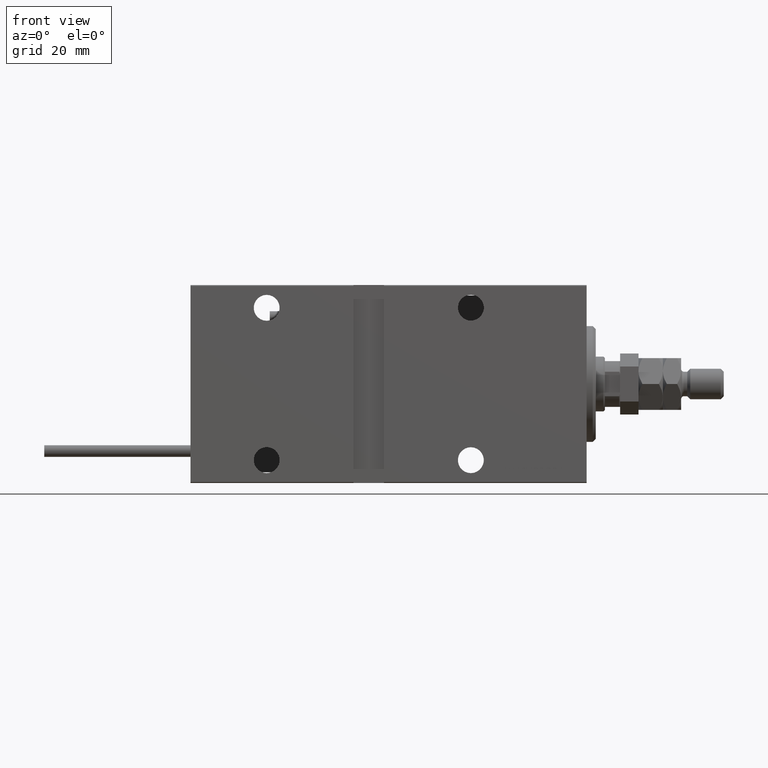
[diagram: clean part render]
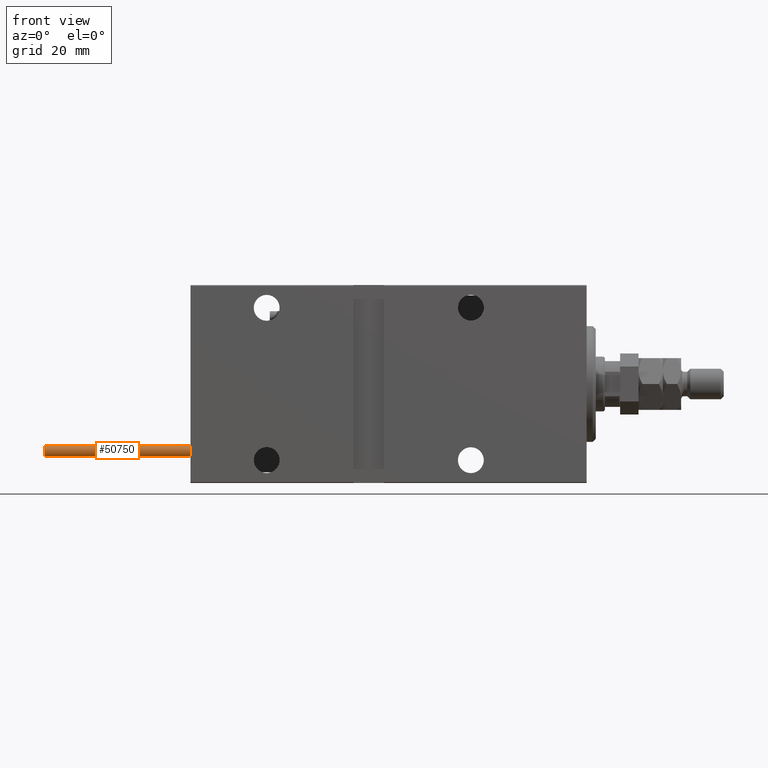
[diagram: same view with one face highlighted and labeled with its STEP entity id]
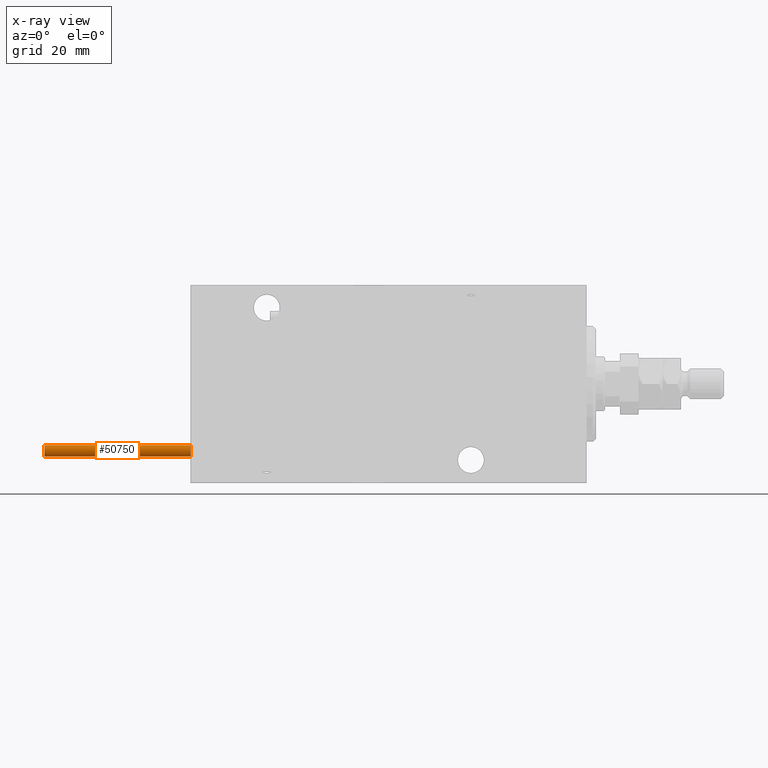
[diagram: x-ray of the same camera — body ghosted, the highlighted face saturated]
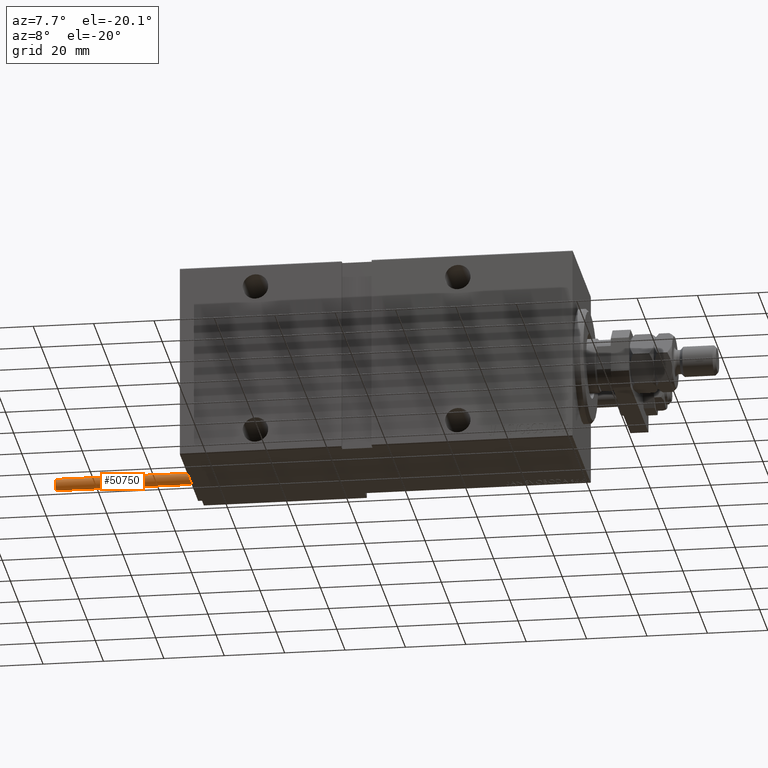
[diagram: same view with one face highlighted and labeled with its STEP entity id]
A machine part, front view. The second image highlights one B-rep face of the part: STEP entity #50750.
The next image is the same camera in x-ray: the body ghosted, the highlighted face saturated — about 0% of this face is hidden behind the body in this view.
A second angle (auxiliary view) of the same face is appended — the face is thin or edge-on in the first view.
In plain terms, the highlighted cylindrical surface (edge-blend (fillet) strip) has radius 1.9 mm, axis along (1, -0, 0).
Its self-contained STEP definition (entity closure, byte-faithful):
#620 = DIRECTION ( 'NONE',  ( -0.000000000000000000, -0.000000000000000000, -1.000000000000000000 ) ) ;
#1344 = CARTESIAN_POINT ( 'NONE',  ( 0.000000000000000000, 0.000000000000000000, 48.00000000000000000 ) ) ;
#2046 = AXIS2_PLACEMENT_3D ( 'NONE', #1344, #17070, #41388 ) ;
#2916 = CARTESIAN_POINT ( 'NONE',  ( 0.000000000000000000, 0.000000000000000000, 48.00000000000000000 ) ) ;
#3109 = AXIS2_PLACEMENT_3D ( 'NONE', #2916, #11029, #42968 ) ;
#3456 = VERTEX_POINT ( 'NONE', #39697 ) ;
#9001 = LINE ( 'NONE', #24215, #49346 ) ;
#10524 = CARTESIAN_POINT ( 'NONE',  ( 1.899999999999999467, 2.326828918379970872E-16, 0.000000000000000000 ) ) ;
#11029 = DIRECTION ( 'NONE',  ( -0.000000000000000000, -0.000000000000000000, -1.000000000000000000 ) ) ;
#12201 = DIRECTION ( 'NONE',  ( -0.000000000000000000, -0.000000000000000000, -1.000000000000000000 ) ) ;
#13440 = ORIENTED_EDGE ( 'NONE', *, *, #15566, .F. ) ;
#14442 = CYLINDRICAL_SURFACE ( 'NONE', #3109, 1.899999999999999467 ) ;
#15177 = ORIENTED_EDGE ( 'NONE', *, *, #46332, .F. ) ;
#15566 = EDGE_CURVE ( 'NONE', #31920, #21950, #32603, .T. ) ;
#16904 = CIRCLE ( 'NONE', #31119, 1.899999999999999467 ) ;
#17070 = DIRECTION ( 'NONE',  ( 0.000000000000000000, 0.000000000000000000, 1.000000000000000000 ) ) ;
#19369 = EDGE_CURVE ( 'NONE', #50526, #21950, #16904, .T. ) ;
#21381 = CARTESIAN_POINT ( 'NONE',  ( 1.899999999999999467, 2.326828918379970872E-16, 48.00000000000000000 ) ) ;
#21950 = VERTEX_POINT ( 'NONE', #10524 ) ;
#24020 = DIRECTION ( 'NONE',  ( 0.000000000000000000, 0.000000000000000000, 1.000000000000000000 ) ) ;
#24215 = CARTESIAN_POINT ( 'NONE',  ( -1.899999999999999467, 0.000000000000000000, 48.00000000000000000 ) ) ;
#24551 = DIRECTION ( 'NONE',  ( 1.000000000000000000, 0.000000000000000000, 0.000000000000000000 ) ) ;
#24640 = CIRCLE ( 'NONE', #2046, 1.899999999999999467 ) ;
#28314 = EDGE_LOOP ( 'NONE', ( #13440, #15177, #51478, #43506 ) ) ;
#30686 = FACE_OUTER_BOUND ( 'NONE', #28314, .T. ) ;
#31119 = AXIS2_PLACEMENT_3D ( 'NONE', #43381, #24020, #24551 ) ;
#31920 = VERTEX_POINT ( 'NONE', #21381 ) ;
#32142 = EDGE_CURVE ( 'NONE', #3456, #50526, #9001, .T. ) ;
#32603 = LINE ( 'NONE', #48307, #47123 ) ;
#34462 = CARTESIAN_POINT ( 'NONE',  ( -1.899999999999999467, 0.000000000000000000, 0.000000000000000000 ) ) ;
#39697 = CARTESIAN_POINT ( 'NONE',  ( -1.899999999999999467, 0.000000000000000000, 48.00000000000000000 ) ) ;
#41388 = DIRECTION ( 'NONE',  ( 1.000000000000000000, 0.000000000000000000, 0.000000000000000000 ) ) ;
#42968 = DIRECTION ( 'NONE',  ( -1.000000000000000000, 0.000000000000000000, 0.000000000000000000 ) ) ;
#43381 = CARTESIAN_POINT ( 'NONE',  ( 0.000000000000000000, 0.000000000000000000, 0.000000000000000000 ) ) ;
#43506 = ORIENTED_EDGE ( 'NONE', *, *, #19369, .T. ) ;
#46332 = EDGE_CURVE ( 'NONE', #3456, #31920, #24640, .T. ) ;
#47123 = VECTOR ( 'NONE', #12201, 1000.000000000000000 ) ;
#48307 = CARTESIAN_POINT ( 'NONE',  ( 1.899999999999999467, 2.326828918379970872E-16, 48.00000000000000000 ) ) ;
#49346 = VECTOR ( 'NONE', #620, 1000.000000000000000 ) ;
#50526 = VERTEX_POINT ( 'NONE', #34462 ) ;
#50750 = ADVANCED_FACE ( 'NONE', ( #30686 ), #14442, .T. ) ;
#51478 = ORIENTED_EDGE ( 'NONE', *, *, #32142, .T. ) ;